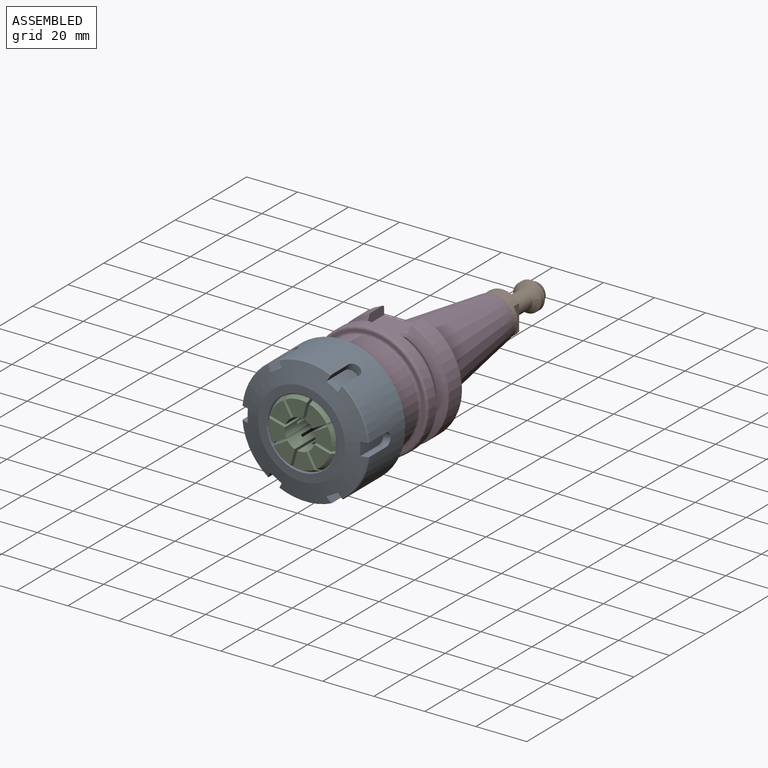
[diagram: assembled view]
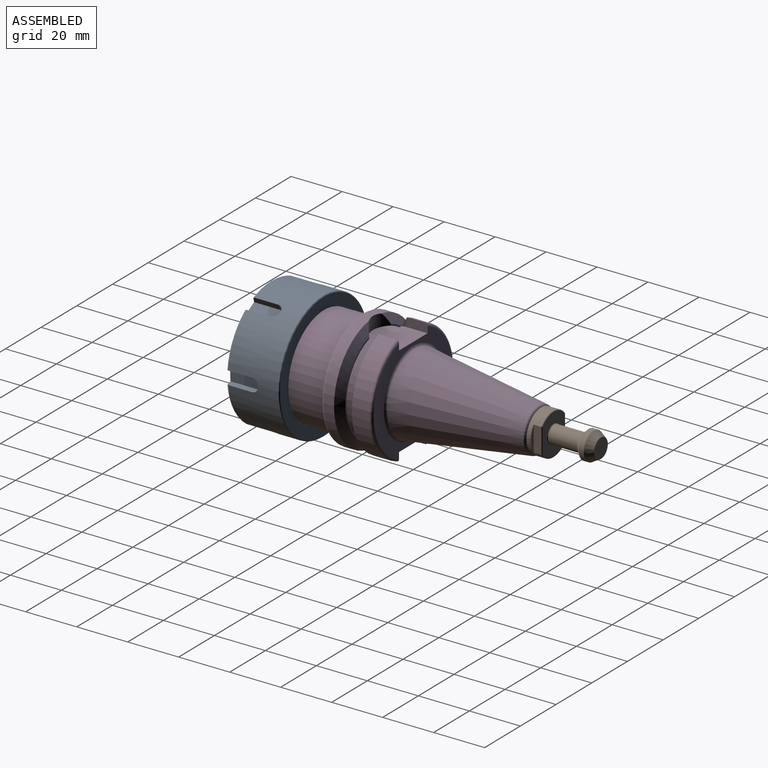
[diagram: assembled view, second angle]
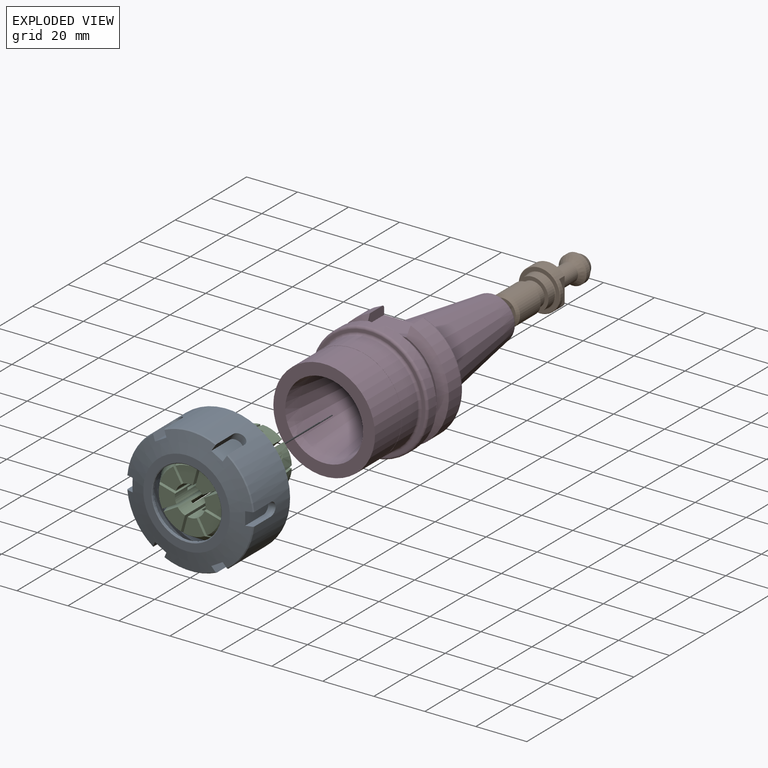
[diagram: exploded view]
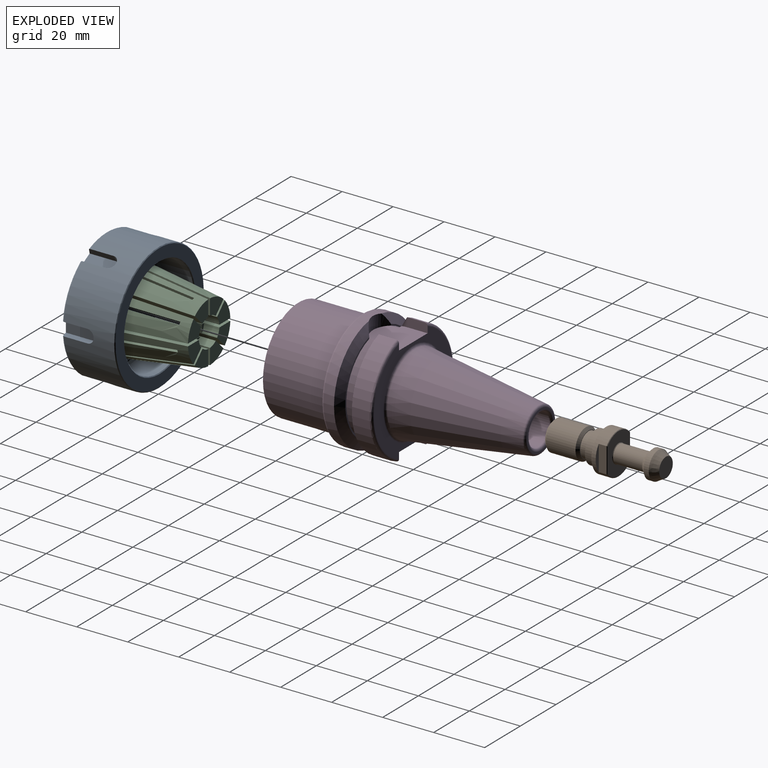
[diagram: exploded view, second angle]
ASSEMBLY  parts=4 mates=3
PART A: 43 faces, bbox 50x22.6x50 mm
  f0: cone r=25mm half-angle=31deg, axis (0,1,0), area 11.8mm2, adj f11,f14,f37,f40
  f1: cone r=25mm half-angle=31deg, axis (0,1,0), area 11.8mm2, adj f11,f14,f33,f36
  f2: cone r=25mm half-angle=31deg, axis (0,1,0), area 11.8mm2, adj f11,f14,f29,f32
  f3: cone r=25mm half-angle=31deg, axis (0,1,0), area 11.8mm2, adj f11,f14,f25,f28
  f4: cone r=25mm half-angle=31deg, axis (0,1,0), area 11.8mm2, adj f11,f14,f21,f24
  f5: cone r=20.5mm half-angle=45deg, axis (0,1,0), area 1057.4mm2, adj f6,f13
  f6: plane 42x42mm, normal (0,1,0), area 65.2mm2, adj f5,f7
  f7: cylinder r=21mm len=42mm, axis (0,1,0), area 395.8mm2, adj f6,f8
  f8: plane 42x42mm, normal (0,-1,0), area 166.2mm2, adj f7,f9
  f9: cylinder r=19.7mm len=39.4mm, axis (0,1,0), area 1398.7mm2, adj f8,f15
  f10: plane 49.4x49.4mm, normal (0,1,0), area 660mm2, adj f15,f18
  f11: cylinder r=25mm len=50mm, axis (0,1,0), area 2775.6mm2, adj f0,f1,f2,f3,f4,f16,f18,f19
  f12: plane 34x34mm, normal (0,-1,0), area 309.6mm2, adj f14,f17
  f13: cylinder r=13.5mm len=27mm, axis (0,1,0), area 59.4mm2, adj f5,f17
  f14: cone r=25mm half-angle=76deg, axis (0,1,0), area 958.6mm2, adj f0,f1,f2,f3,f4,f12,f16,f20
  f15: cone r=19.7mm half-angle=45deg, axis (0,1,0), area 52.9mm2, adj f9,f10
  f16: cone r=25mm half-angle=31deg, axis (0,1,0), area 11.8mm2, adj f11,f14,f20,f41
  f17: cone r=13.8mm half-angle=45deg, axis (0,-1,0), area 36.4mm2, adj f12,f13
  f18: cone r=24.7mm half-angle=45deg, axis (0,-1,0), area 66.2mm2, adj f10,f11
  f19: cylinder r=2.58mm len=5.16mm, axis (-1,0,0), area 23.1mm2, adj f11,f20,f21,f22
  f20: plane 10.33x2.8mm, normal (0,0,1), area 27.7mm2, adj f11,f14,f16,f19,f22
  f21: plane 10.33x2.8mm, normal (0,0,-1), area 27.7mm2, adj f4,f11,f14,f19,f22
  f22: plane 12.93x5.16mm, normal (-1,0,0), area 63.8mm2, adj f14,f19,f20,f21
  f23: cylinder r=2.58mm len=5.93mm, axis (-0.5,0,0.87), area 23.1mm2, adj f11,f24,f25,f26
  f24: plane 10.33x2.43mm, normal (0.87,0,0.5), area 27.7mm2, adj f4,f11,f14,f23,f26
  f25: plane 10.33x2.43mm, normal (-0.87,0,-0.5), area 27.7mm2, adj f3,f11,f14,f23,f26
  f26: plane 12.93x4.47mm, normal (-0.5,0,0.87), area 63.8mm2, adj f14,f23,f24,f25
  f27: cylinder r=2.58mm len=5.93mm, axis (0.5,0,0.87), area 23.1mm2, adj f11,f28,f29,f30
  f28: plane 10.33x2.43mm, normal (0.87,0,-0.5), area 27.7mm2, adj f3,f11,f14,f27,f30
  f29: plane 10.33x2.43mm, normal (-0.87,0,0.5), area 27.7mm2, adj f2,f11,f14,f27,f30
  f30: plane 12.93x4.47mm, normal (0.5,0,0.87), area 63.8mm2, adj f14,f27,f28,f29
  f31: cylinder r=2.58mm len=5.16mm, axis (1,0,0), area 23.1mm2, adj f11,f32,f33,f34
  f32: plane 10.33x2.8mm, normal (0,0,-1), area 27.7mm2, adj f2,f11,f14,f31,f34
  f33: plane 10.33x2.8mm, normal (0,0,1), area 27.7mm2, adj f1,f11,f14,f31,f34
  f34: plane 12.93x5.16mm, normal (1,0,0), area 63.8mm2, adj f14,f31,f32,f33
  f35: cylinder r=2.58mm len=5.93mm, axis (0.5,0,-0.87), area 23.1mm2, adj f11,f36,f37,f38
  f36: plane 10.33x2.43mm, normal (-0.87,0,-0.5), area 27.7mm2, adj f1,f11,f14,f35,f38
  f37: plane 10.33x2.43mm, normal (0.87,0,0.5), area 27.7mm2, adj f0,f11,f14,f35,f38
  f38: plane 12.93x4.47mm, normal (0.5,0,-0.87), area 63.8mm2, adj f14,f35,f36,f37
  f39: cylinder r=2.58mm len=5.93mm, axis (-0.5,0,-0.87), area 23.1mm2, adj f11,f40,f41,f42
  f40: plane 10.33x2.43mm, normal (-0.87,0,0.5), area 27.7mm2, adj f0,f11,f14,f39,f42
  f41: plane 10.33x2.43mm, normal (0.87,0,-0.5), area 27.7mm2, adj f11,f14,f16,f39,f42
  f42: plane 12.93x4.47mm, normal (-0.5,0,-0.87), area 63.8mm2, adj f14,f39,f40,f41
PART B: 27 faces, bbox 16.4x43.9x16.4 mm
  f0: cylinder r=8.22mm len=16.44mm, axis (0,-1,0), area 175.9mm2, adj f16,f17,f18,f19,f21,f23,f24
  f1: plane 16.04x12.63mm, normal (0,1,0), area 136.1mm2, adj f22,f23,f24,f25,f26
  f2: plane 9.95x9.95mm, normal (0,-1,0), area 77.8mm2, adj f15
  f3: cylinder r=5.98mm len=11.95mm, axis (0,-1,0), area 435.5mm2, adj f14,f15
  f4: plane 9.95x9.95mm, normal (0,1,0), area 5.8mm2, adj f5,f14
  f5: cylinder r=4.79mm len=9.57mm, axis (0,-1,0), area 87.2mm2, adj f4,f6
  f6: plane 12.53x12.53mm, normal (0,-1,0), area 51.4mm2, adj f5,f7
  f7: cylinder r=6.26mm len=12.53mm, axis (0,-1,0), area 141.7mm2, adj f6,f20
  f8: plane 16.04x16.04mm, normal (0,-1,0), area 70.8mm2, adj f20,f21
  f9: cylinder r=3.5mm len=11.4mm, axis (0,-1,0), area 250.7mm2, adj f10,f26
  f10: cone r=3.5mm half-angle=45deg, axis (0,1,0), area 80mm2, adj f9,f11
  f11: cylinder r=5.5mm len=11mm, axis (0,-1,0), area 69.1mm2, adj f10,f12
  f12: cone r=5.5mm half-angle=30deg, axis (0,-1,0), area 98.7mm2, adj f11,f13
  f13: plane 7.63x7.63mm, normal (0,1,0), area 45.7mm2, adj f12
  f14: cone r=5.98mm half-angle=45deg, axis (0,-1,0), area 48.6mm2, adj f3,f4
  f15: cone r=4.98mm half-angle=45deg, axis (0,1,0), area 48.6mm2, adj f2,f3
  f16: plane 10.02x3.1mm, normal (-1,0,0), area 31.1mm2, adj f0,f17,f25
  f17: plane 10.02x1.71mm, normal (0,1,0), area 11.7mm2, adj f0,f16
  f18: plane 10.02x1.71mm, normal (0,1,0), area 11.7mm2, adj f0,f19
  f19: plane 10.02x3.1mm, normal (1,0,0), area 31.1mm2, adj f0,f18,f22
  f20: cone r=6.26mm half-angle=45deg, axis (0,1,0), area 11.3mm2, adj f7,f8
  f21: cone r=8.02mm half-angle=45deg, axis (0,1,0), area 14.4mm2, adj f0,f8
  f22: plane 10.03x0.2mm, normal (0.71,0.71,0), area 2.8mm2, adj f1,f19,f23,f24
  f23: cone r=8.22mm half-angle=45deg, axis (0,-1,0), area 4.2mm2, adj f0,f1,f22,f25
  f24: cone r=8.22mm half-angle=45deg, axis (0,-1,0), area 4.2mm2, adj f0,f1,f22,f25
  f25: plane 10.03x0.2mm, normal (-0.71,0.71,0), area 2.8mm2, adj f1,f16,f23,f24
  f26: cone r=3.7mm half-angle=45deg, axis (0,-1,0), area 6.4mm2, adj f1,f9
PART C: 184 faces, bbox 32.8x40x32.8 mm
  f0: cone r=12.36mm half-angle=30deg, axis (0,1,0), area 78.2mm2, adj f14,f38,f97,f136,f137,f138,f163,f173
  f1: cone r=12.36mm half-angle=30deg, axis (0,1,0), area 78.2mm2, adj f15,f37,f39,f157,f158,f159,f164,f182
  f2: cone r=12.36mm half-angle=30deg, axis (0,1,0), area 78.2mm2, adj f16,f56,f98,f139,f140,f141,f161,f172
  f3: cone r=12.36mm half-angle=30deg, axis (0,1,0), area 78.2mm2, adj f17,f43,f104,f142,f143,f144,f162,f176
  f4: cone r=12.36mm half-angle=30deg, axis (0,1,0), area 78.2mm2, adj f18,f40,f99,f154,f155,f156,f169,f183
  f5: cone r=12.36mm half-angle=30deg, axis (0,1,0), area 78.2mm2, adj f19,f41,f100,f151,f152,f153,f170,f178
  f6: cone r=12.36mm half-angle=30deg, axis (0,1,0), area 78.2mm2, adj f20,f42,f101,f148,f149,f150,f166,f179
  f7: cylinder r=6mm len=22mm, axis (0,-1,0), area 66.7mm2, adj f14,f45,f105,f136,f137,f138,f163,f173
  f8: cylinder r=6mm len=22mm, axis (0,-1,0), area 66.7mm2, adj f15,f44,f46,f157,f158,f159,f164,f182
  f9: cylinder r=6mm len=22mm, axis (0,-1,0), area 66.7mm2, adj f16,f59,f106,f139,f140,f141,f161,f172
  f10: cylinder r=6mm len=22mm, axis (0,-1,0), area 66.7mm2, adj f17,f50,f112,f142,f143,f144,f162,f176
  f11: cylinder r=6mm len=22mm, axis (0,-1,0), area 66.7mm2, adj f18,f47,f107,f154,f155,f156,f169,f183
  f12: cylinder r=6mm len=22mm, axis (0,-1,0), area 66.7mm2, adj f19,f48,f108,f151,f152,f153,f170,f178
  f13: cylinder r=6mm len=22mm, axis (0,-1,0), area 66.7mm2, adj f20,f49,f109,f148,f149,f150,f166,f179
  f14: plane 8.45x6.93mm, normal (0,-1,0), area 39.5mm2, adj f0,f7,f163,f173
  f15: plane 8.41x8.38mm, normal (0,-1,0), area 39.5mm2, adj f1,f8,f164,f182
  f16: plane 8.41x8.38mm, normal (0,-1,0), area 39.5mm2, adj f2,f9,f161,f172
  f17: plane 8.45x6.93mm, normal (0,-1,0), area 39.5mm2, adj f3,f10,f162,f176
  f18: plane 8.45x6.93mm, normal (0,-1,0), area 39.5mm2, adj f4,f11,f169,f183
  f19: plane 8.41x8.38mm, normal (0,-1,0), area 39.5mm2, adj f5,f12,f170,f178
  f20: plane 8.45x6.93mm, normal (0,-1,0), area 39.5mm2, adj f6,f13,f166,f179
  f21: cone r=16mm half-angle=8deg, axis (0,-1,0), area 268.8mm2, adj f25,f70,f83,f155,f158,f181,f182,f183
  f22: cone r=16mm half-angle=8deg, axis (0,-1,0), area 268.8mm2, adj f29,f74,f87,f143,f145,f175,f176,f177
  f23: plane 3.33x3.07mm, normal (0,-1,0), area 4.8mm2, adj f30,f76,f159,f164
  f24: plane 3.16x1.97mm, normal (0,-1,0), area 4.8mm2, adj f31,f77,f138,f173
  f25: plane 6.75x4.79mm, normal (0,-1,0), area 11.2mm2, adj f21,f32,f158,f182
  f26: plane 7.06x3.28mm, normal (0,-1,0), area 11.2mm2, adj f33,f78,f154,f169
  f27: plane 6.75x4.79mm, normal (0,-1,0), area 11.2mm2, adj f34,f79,f151,f178
  f28: plane 7.06x3.28mm, normal (0,-1,0), area 11.2mm2, adj f35,f80,f148,f166
  f29: plane 3.16x1.97mm, normal (0,-1,0), area 4.8mm2, adj f22,f36,f143,f176
  f30: cylinder r=14.39mm len=3.6mm, axis (0,-1,0), area 10mm2, adj f23,f37,f159,f164
  f31: cylinder r=14.39mm len=3.6mm, axis (0,-1,0), area 10mm2, adj f24,f38,f138,f173
  f32: cylinder r=14.39mm len=5.61mm, axis (0,-1,0), area 23.5mm2, adj f25,f39,f158,f182
  f33: cylinder r=14.39mm len=6.26mm, axis (0,-1,0), area 23.5mm2, adj f26,f40,f154,f169
  f34: cylinder r=14.39mm len=5.61mm, axis (0,-1,0), area 23.5mm2, adj f27,f41,f151,f178
  f35: cylinder r=14.39mm len=6.26mm, axis (0,-1,0), area 23.5mm2, adj f28,f42,f148,f166
  f36: cylinder r=14.39mm len=3.6mm, axis (0,-1,0), area 10mm2, adj f29,f43,f143,f176
  f37: plane 3.61x3.42mm, normal (0,1,0), area 6.1mm2, adj f1,f30,f159,f164
  f38: plane 3.26x2.37mm, normal (0,1,0), area 6.1mm2, adj f0,f31,f138,f173
  f39: plane 7.03x5.18mm, normal (0,1,0), area 14.2mm2, adj f1,f32,f158,f182
  f40: plane 7.26x3.68mm, normal (0,1,0), area 14.2mm2, adj f4,f33,f154,f169
  f41: plane 7.03x5.18mm, normal (0,1,0), area 14.2mm2, adj f5,f34,f151,f178
  f42: plane 7.26x3.68mm, normal (0,1,0), area 14.2mm2, adj f6,f35,f148,f166
  f43: plane 3.26x2.37mm, normal (0,1,0), area 6.1mm2, adj f3,f36,f143,f176
  f44: plane 0.7x0.46mm, normal (0,-1,0), area 0.2mm2, adj f8,f113,f135,f159,f164
  f45: plane 1.48x0.56mm, normal (0,-1,0), area 0.6mm2, adj f7,f121,f138,f173
  f46: plane 2.15x1.18mm, normal (0,-1,0), area 1.4mm2, adj f8,f51,f130,f158,f182
  f47: plane 2.06x1.48mm, normal (0,-1,0), area 2.4mm2, adj f11,f131,f154,f169
  f48: plane 2.15x1.18mm, normal (0,-1,0), area 1.4mm2, adj f12,f115,f132,f151,f178
  f49: plane 2.06x1.48mm, normal (0,-1,0), area 2.4mm2, adj f13,f133,f148,f166
  f50: plane 1.48x0.56mm, normal (0,-1,0), area 0.6mm2, adj f10,f52,f143,f176
  f51: plane 12.01x3.01mm, normal (-1,0,0), area 26.1mm2, adj f46,f65,f107,f130,f155,f181,f182,f183
  f52: plane 12.01x3.01mm, normal (1,0,0), area 26.1mm2, adj f50,f67,f111,f134,f143,f175,f176,f177
  f53: cone r=16mm half-angle=8deg, axis (0,-1,0), area 268.8mm2, adj f54,f75,f88,f140,f142,f160,f161,f162
  f54: plane 3.33x3.07mm, normal (0,-1,0), area 4.8mm2, adj f53,f55,f140,f161
  f55: cylinder r=14.39mm len=3.6mm, axis (0,-1,0), area 10mm2, adj f54,f56,f140,f161
  f56: plane 3.61x3.42mm, normal (0,1,0), area 6.1mm2, adj f2,f55,f140,f161
  f57: cone r=12.36mm half-angle=30deg, axis (0,1,0), area 78.2mm2, adj f60,f102,f103,f145,f146,f147,f167,f175
  f58: cylinder r=6mm len=22mm, axis (0,-1,0), area 66.7mm2, adj f60,f110,f111,f145,f146,f147,f167,f175
  f59: plane 0.7x0.46mm, normal (0,-1,0), area 0.2mm2, adj f9,f61,f118,f140,f161
  f60: plane 8.41x8.38mm, normal (0,-1,0), area 39.5mm2, adj f57,f58,f167,f175
  f61: plane 12.01x3.01mm, normal (1,0,0), area 24.4mm2, adj f59,f112,f118,f127,f142,f160,f161,f162
  f62: cylinder r=5.75mm len=6mm, axis (0,-1,0), area 20.2mm2, adj f65,f70,f130,f155
  f63: cylinder r=5.75mm len=6mm, axis (0,-1,0), area 20.2mm2, adj f66,f72,f132,f149
  f64: cylinder r=5.75mm len=6mm, axis (0,-1,0), area 20.2mm2, adj f67,f74,f134,f143
  f65: plane 3.08x1.23mm, normal (0,1,0), area 2.4mm2, adj f51,f62,f130,f155
  f66: plane 3.08x1.23mm, normal (0,1,0), area 2.4mm2, adj f63,f115,f132,f149
  f67: plane 3.08x1.23mm, normal (0,1,0), area 2.4mm2, adj f52,f64,f134,f143
  f68: plane 7.53x7.39mm, normal (0,1,0), area 36.2mm2, adj f76,f113,f128,f137,f159
  f69: plane 7.53x7.39mm, normal (0,1,0), area 36.2mm2, adj f77,f117,f119,f138,f139
  f70: plane 7.53x7.39mm, normal (0,1,0), area 36.2mm2, adj f21,f62,f130,f155,f158
  f71: plane 7.53x7.39mm, normal (0,1,0), area 36.2mm2, adj f78,f114,f122,f152,f154
  f72: plane 7.53x7.39mm, normal (0,1,0), area 36.2mm2, adj f63,f79,f132,f149,f151
  f73: plane 7.53x7.39mm, normal (0,1,0), area 36.2mm2, adj f80,f116,f123,f146,f148
  f74: plane 7.53x7.39mm, normal (0,1,0), area 36.2mm2, adj f22,f64,f134,f143,f145
  f75: plane 7.53x7.39mm, normal (0,1,0), area 36.2mm2, adj f53,f118,f124,f140,f142
  f76: cone r=16mm half-angle=8deg, axis (0,-1,0), area 268.8mm2, adj f23,f68,f81,f137,f159,f163,f164,f165
  f77: cone r=16mm half-angle=8deg, axis (0,-1,0), area 268.8mm2, adj f24,f69,f82,f138,f139,f172,f173,f174
  f78: cone r=16mm half-angle=8deg, axis (0,-1,0), area 268.8mm2, adj f26,f71,f84,f152,f154,f169,f170,f171
  f79: cone r=16mm half-angle=8deg, axis (0,-1,0), area 268.8mm2, adj f27,f72,f85,f149,f151,f178,f179,f180
  f80: cone r=16mm half-angle=8deg, axis (0,-1,0), area 268.8mm2, adj f28,f73,f86,f146,f148,f166,f167,f168
  f81: plane 7.06x3.28mm, normal (0,-1,0), area 11.2mm2, adj f76,f89,f137,f163
  f82: plane 6.75x4.79mm, normal (0,-1,0), area 11.2mm2, adj f77,f90,f139,f172
  f83: plane 3.16x1.97mm, normal (0,-1,0), area 4.8mm2, adj f21,f91,f155,f183
  f84: plane 3.33x3.07mm, normal (0,-1,0), area 4.8mm2, adj f78,f92,f152,f170
  f85: plane 3.16x1.97mm, normal (0,-1,0), area 4.8mm2, adj f79,f93,f149,f179
  f86: plane 3.33x3.07mm, normal (0,-1,0), area 4.8mm2, adj f80,f94,f146,f167
  f87: plane 6.75x4.79mm, normal (0,-1,0), area 11.2mm2, adj f22,f95,f145,f175
  f88: plane 7.06x3.28mm, normal (0,-1,0), area 11.2mm2, adj f53,f96,f142,f162
  f89: cylinder r=14.39mm len=6.26mm, axis (0,-1,0), area 23.5mm2, adj f81,f97,f137,f163
  f90: cylinder r=14.39mm len=5.61mm, axis (0,-1,0), area 23.5mm2, adj f82,f98,f139,f172
  f91: cylinder r=14.39mm len=3.6mm, axis (0,-1,0), area 10mm2, adj f83,f99,f155,f183
  f92: cylinder r=14.39mm len=3.6mm, axis (0,-1,0), area 10mm2, adj f84,f100,f152,f170
  f93: cylinder r=14.39mm len=3.6mm, axis (0,-1,0), area 10mm2, adj f85,f101,f149,f179
  f94: cylinder r=14.39mm len=3.6mm, axis (0,-1,0), area 10mm2, adj f86,f102,f146,f167
  f95: cylinder r=14.39mm len=5.61mm, axis (0,-1,0), area 23.5mm2, adj f87,f103,f145,f175
  f96: cylinder r=14.39mm len=6.26mm, axis (0,-1,0), area 23.5mm2, adj f88,f104,f142,f162
  f97: plane 7.26x3.68mm, normal (0,1,0), area 14.2mm2, adj f0,f89,f137,f163
  f98: plane 7.03x5.18mm, normal (0,1,0), area 14.2mm2, adj f2,f90,f139,f172
  f99: plane 3.26x2.37mm, normal (0,1,0), area 6.1mm2, adj f4,f91,f155,f183
  f100: plane 3.61x3.42mm, normal (0,1,0), area 6.1mm2, adj f5,f92,f152,f170
  f101: plane 3.26x2.37mm, normal (0,1,0), area 6.1mm2, adj f6,f93,f149,f179
  f102: plane 3.61x3.42mm, normal (0,1,0), area 6.1mm2, adj f57,f94,f146,f167
  f103: plane 7.03x5.18mm, normal (0,1,0), area 14.2mm2, adj f57,f95,f145,f175
  f104: plane 7.26x3.68mm, normal (0,1,0), area 14.2mm2, adj f3,f96,f142,f162
  f105: plane 2.06x1.48mm, normal (0,-1,0), area 2.4mm2, adj f7,f135,f137,f163
  f106: plane 2.15x1.18mm, normal (0,-1,0), area 1.4mm2, adj f9,f117,f121,f139,f172
  f107: plane 1.48x0.56mm, normal (0,-1,0), area 0.6mm2, adj f11,f51,f155,f183
  f108: plane 0.7x0.46mm, normal (0,-1,0), area 0.2mm2, adj f12,f114,f131,f152,f170
  f109: plane 1.48x0.56mm, normal (0,-1,0), area 0.6mm2, adj f13,f115,f149,f179
  f110: plane 0.7x0.46mm, normal (0,-1,0), area 0.2mm2, adj f58,f116,f133,f146,f167
  f111: plane 2.15x1.18mm, normal (0,-1,0), area 1.4mm2, adj f52,f58,f134,f145,f175
  f112: plane 2.06x1.48mm, normal (0,-1,0), area 2.4mm2, adj f10,f61,f142,f162
  f113: cylinder r=1mm len=18mm, axis (0,1,0), area 4.2mm2, adj f44,f68,f128,f129,f135,f159
  f114: cylinder r=1mm len=18mm, axis (0,1,0), area 4.2mm2, adj f71,f108,f122,f125,f131,f152
  f115: plane 12.01x3.01mm, normal (0,0,-1), area 26.1mm2, adj f48,f66,f109,f132,f149,f178,f179,f180
  f116: cylinder r=1mm len=18mm, axis (0,1,0), area 4.2mm2, adj f73,f110,f123,f126,f133,f146
  f117: cylinder r=1mm len=18mm, axis (0,1,0), area 4.2mm2, adj f69,f106,f119,f120,f121,f139
  f118: cylinder r=1mm len=18mm, axis (0,1,0), area 4.2mm2, adj f59,f61,f75,f124,f127,f140
  f119: cylinder r=5.75mm len=6mm, axis (0,-1,0), area 20.2mm2, adj f69,f117,f120,f138
  f120: plane 3.08x1.23mm, normal (0,1,0), area 2.4mm2, adj f117,f119,f121,f138
  f121: plane 12.01x3.01mm, normal (0,0,1), area 26.1mm2, adj f45,f106,f117,f120,f138,f172,f173,f174
  f122: cylinder r=5.75mm len=6mm, axis (0,-1,0), area 20.2mm2, adj f71,f114,f125,f154
  f123: cylinder r=5.75mm len=6mm, axis (0,-1,0), area 20.2mm2, adj f73,f116,f126,f148
  f124: cylinder r=5.75mm len=6mm, axis (0,-1,0), area 20.2mm2, adj f75,f118,f127,f142
  f125: plane 3.08x1.23mm, normal (0,1,0), area 2.4mm2, adj f114,f122,f131,f154
  f126: plane 3.08x1.23mm, normal (0,1,0), area 2.4mm2, adj f116,f123,f133,f148
  f127: plane 3.08x1.23mm, normal (0,1,0), area 2.4mm2, adj f61,f118,f124,f142
  f128: cylinder r=5.75mm len=6mm, axis (0,-1,0), area 20.2mm2, adj f68,f113,f129,f137
  f129: plane 3.08x1.23mm, normal (0,1,0), area 2.4mm2, adj f113,f128,f135,f137
  f130: cylinder r=1mm len=18mm, axis (0,1,0), area 4.2mm2, adj f46,f51,f62,f65,f70,f158
  f131: plane 12.01x3.01mm, normal (-1,0,0), area 24.4mm2, adj f47,f108,f114,f125,f154,f169,f170,f171
  f132: cylinder r=1mm len=18mm, axis (0,1,0), area 4.2mm2, adj f48,f63,f66,f72,f115,f151
  f133: plane 12.01x3.01mm, normal (0,0,-1), area 24.4mm2, adj f49,f110,f116,f126,f148,f166,f167,f168
  f134: cylinder r=1mm len=18mm, axis (0,1,0), area 4.2mm2, adj f52,f64,f67,f74,f111,f145
  f135: plane 12.01x3.01mm, normal (0,0,1), area 24.4mm2, adj f44,f105,f113,f129,f137,f163,f164,f165
  f136: cylinder r=18.36mm len=7.99mm, axis (-1,0,0), area 9.2mm2, adj f0,f7,f137,f138
  f137: plane 37.22x11.91mm, normal (-1,0,0), area 308.1mm2, adj f0,f7,f68,f76,f81,f89,f97,f105
  f138: plane 37.22x11.91mm, normal (1,0,0), area 308.1mm2, adj f0,f7,f24,f31,f38,f45,f69,f77
  f139: plane 37.22x7.5mm, normal (-0.71,0,0.71), area 291.8mm2, adj f2,f9,f69,f77,f82,f90,f98,f106
  f140: plane 37.22x7.5mm, normal (0.71,0,-0.71), area 291.8mm2, adj f2,f9,f53,f54,f55,f56,f59,f75
  f141: cylinder r=18.36mm len=6.36mm, axis (-0.71,0,0.71), area 9.2mm2, adj f2,f9,f139,f140
  f142: plane 37.22x11.91mm, normal (0,0,1), area 308.1mm2, adj f3,f10,f53,f61,f75,f88,f96,f104
  f143: plane 37.22x11.91mm, normal (0,0,-1), area 308.1mm2, adj f3,f10,f22,f29,f36,f43,f50,f52
  f144: cylinder r=18.36mm len=7.99mm, axis (0,0,1), area 9.2mm2, adj f3,f10,f142,f143
  f145: plane 37.22x7.5mm, normal (0.71,0,0.71), area 291.8mm2, adj f22,f57,f58,f74,f87,f95,f103,f111
  f146: plane 37.22x7.5mm, normal (-0.71,0,-0.71), area 291.8mm2, adj f57,f58,f73,f80,f86,f94,f102,f110
  f147: cylinder r=18.36mm len=6.36mm, axis (0.71,0,0.71), area 9.2mm2, adj f57,f58,f145,f146
  f148: plane 37.22x11.91mm, normal (1,0,0), area 308.1mm2, adj f6,f13,f28,f35,f42,f49,f73,f80
  f149: plane 37.22x11.91mm, normal (-1,0,0), area 308.1mm2, adj f6,f13,f63,f66,f72,f79,f85,f93
  f150: cylinder r=18.36mm len=7.99mm, axis (1,0,0), area 9.2mm2, adj f6,f13,f148,f149
  f151: plane 37.22x7.5mm, normal (0.71,0,-0.71), area 291.8mm2, adj f5,f12,f27,f34,f41,f48,f72,f79
  f152: plane 37.22x7.5mm, normal (-0.71,0,0.71), area 291.8mm2, adj f5,f12,f71,f78,f84,f92,f100,f108
  f153: cylinder r=18.36mm len=6.36mm, axis (0.71,0,-0.71), area 9.2mm2, adj f5,f12,f151,f152
  f154: plane 37.22x11.91mm, normal (0,0,-1), area 308.1mm2, adj f4,f11,f26,f33,f40,f47,f71,f78
  f155: plane 37.22x11.91mm, normal (0,0,1), area 308.1mm2, adj f4,f11,f21,f51,f62,f65,f70,f83
  f156: cylinder r=18.36mm len=7.99mm, axis (0,0,-1), area 9.2mm2, adj f4,f11,f154,f155
  f157: cylinder r=18.36mm len=6.36mm, axis (-0.71,0,-0.71), area 9.2mm2, adj f1,f8,f158,f159
  f158: plane 37.22x7.5mm, normal (-0.71,0,-0.71), area 291.8mm2, adj f1,f8,f21,f25,f32,f39,f46,f70
  f159: plane 37.22x7.5mm, normal (0.71,0,0.71), area 291.8mm2, adj f1,f8,f23,f30,f37,f44,f68,f76
  f160: cylinder r=16.42mm len=7mm, axis (0.5,0,-0.87), area 8.3mm2, adj f53,f61,f161,f162
  f161: plane 36.04x9.47mm, normal (-0.5,0,0.87), area 294.8mm2, adj f2,f9,f16,f53,f54,f55,f56,f59
  f162: plane 36.04x9.97mm, normal (0.5,0,-0.87), area 300.6mm2, adj f3,f10,f17,f53,f61,f88,f96,f104
  f163: plane 36.04x9.97mm, normal (0.87,0,0.5), area 300.6mm2, adj f0,f7,f14,f76,f81,f89,f97,f105
  f164: plane 36.04x9.47mm, normal (-0.87,0,-0.5), area 294.8mm2, adj f1,f8,f15,f23,f30,f37,f44,f76
  f165: cylinder r=16.42mm len=7mm, axis (0.87,0,0.5), area 8.3mm2, adj f76,f135,f163,f164
  f166: plane 36.04x9.97mm, normal (-0.87,0,-0.5), area 300.6mm2, adj f6,f13,f20,f28,f35,f42,f49,f80
  f167: plane 36.04x9.47mm, normal (0.87,0,0.5), area 294.8mm2, adj f57,f58,f60,f80,f86,f94,f102,f110
  f168: cylinder r=16.42mm len=7mm, axis (-0.87,0,-0.5), area 8.3mm2, adj f80,f133,f166,f167
  f169: plane 36.04x9.97mm, normal (-0.5,0,0.87), area 300.6mm2, adj f4,f11,f18,f26,f33,f40,f47,f78
  f170: plane 36.04x9.47mm, normal (0.5,0,-0.87), area 294.8mm2, adj f5,f12,f19,f78,f84,f92,f100,f108
  f171: cylinder r=16.42mm len=7mm, axis (-0.5,0,0.87), area 8.3mm2, adj f78,f131,f169,f170
  f172: plane 36.04x11.22mm, normal (0.97,0,-0.26), area 301.7mm2, adj f2,f9,f16,f77,f82,f90,f98,f106
  f173: plane 36.04x11.48mm, normal (-0.97,0,0.26), area 304.3mm2, adj f0,f7,f14,f24,f31,f38,f45,f77
  f174: cylinder r=16.42mm len=7.88mm, axis (0.97,0,-0.26), area 9.1mm2, adj f77,f121,f172,f173
  f175: plane 36.04x11.22mm, normal (-0.26,0,-0.97), area 301.7mm2, adj f22,f52,f57,f58,f60,f87,f95,f103
  f176: plane 36.04x11.48mm, normal (0.26,0,0.97), area 304.3mm2, adj f3,f10,f17,f22,f29,f36,f43,f50
  f177: cylinder r=16.42mm len=7.88mm, axis (-0.26,0,-0.97), area 9.1mm2, adj f22,f52,f175,f176
  f178: plane 36.04x11.22mm, normal (-0.97,0,0.26), area 301.7mm2, adj f5,f12,f19,f27,f34,f41,f48,f79
  f179: plane 36.04x11.48mm, normal (0.97,0,-0.26), area 304.3mm2, adj f6,f13,f20,f79,f85,f93,f101,f109
  f180: cylinder r=16.42mm len=7.88mm, axis (-0.97,0,0.26), area 9.1mm2, adj f79,f115,f178,f179
  f181: cylinder r=16.42mm len=7.88mm, axis (0.26,0,0.97), area 9.1mm2, adj f21,f51,f182,f183
  f182: plane 36.04x11.22mm, normal (0.26,0,0.97), area 301.7mm2, adj f1,f8,f15,f21,f25,f32,f39,f46
  f183: plane 36.04x11.48mm, normal (-0.26,0,-0.97), area 304.3mm2, adj f4,f11,f18,f21,f51,f83,f91,f99
PART D: 45 faces, bbox 50x95.2x50 mm
  f0: cylinder r=18.96mm len=36mm, axis (0,-1,0), area 142.3mm2, adj f3,f7,f38,f44
  f1: cylinder r=18.96mm len=36mm, axis (0,-1,0), area 142.3mm2, adj f2,f8,f38,f44
  f2: plane 36x13.6mm, normal (0,-1,0), area 27.9mm2, adj f1,f9,f38,f44
  f3: plane 36x13.6mm, normal (0,-1,0), area 27.9mm2, adj f0,f10,f38,f44
  f4: cylinder r=23mm len=46mm, axis (0,-1,0), area 570.5mm2, adj f5,f6,f29,f33,f39
  f5: cone r=23mm half-angle=59.8deg, axis (0,-1,0), area 226.7mm2, adj f4,f8,f33,f39
  f6: cone r=23mm half-angle=59.8deg, axis (0,-1,0), area 226.7mm2, adj f4,f7,f33,f39
  f7: plane 37.18x13.6mm, normal (0,1,0), area 28.9mm2, adj f0,f6,f33,f38,f39,f44
  f8: plane 37.18x13.6mm, normal (0,1,0), area 28.9mm2, adj f1,f5,f33,f38,f39,f44
  f9: cone r=19.56mm half-angle=59.8deg, axis (0,1,0), area 201.7mm2, adj f2,f11,f36,f38,f42,f44
  f10: cone r=19.56mm half-angle=59.8deg, axis (0,1,0), area 201.7mm2, adj f3,f12,f34,f38,f40,f44
  f11: cylinder r=23mm len=43.13mm, axis (0,-1,0), area 391.4mm2, adj f9,f14,f36,f37,f41,f42
  f12: cylinder r=23mm len=43.13mm, axis (0,-1,0), area 391.4mm2, adj f10,f15,f34,f35,f40,f43
  f13: plane 44x40.99mm, normal (0,1,0), area 525.4mm2, adj f14,f15,f30,f35,f37,f38,f41,f43
  f14: torus R=22mm, axis (0,1,0), area 85.8mm2, adj f11,f13,f37,f41
  f15: torus R=22mm, axis (0,1,0), area 85.8mm2, adj f12,f13,f35,f43
  f16: cylinder r=6.2mm len=12.4mm, axis (0,-1,0), area 305.8mm2, adj f17,f32
  f17: plane 12.4x12.4mm, normal (0,1,0), area 70.5mm2, adj f16,f18
  f18: cylinder r=4mm len=51.92mm, axis (0,-1,0), area 1304.8mm2, adj f17,f19
  f19: plane 20.93x20.93mm, normal (0,-1,0), area 293.7mm2, adj f18,f20
  f20: cone r=10.46mm half-angle=8deg, axis (0,-1,0), area 2795.4mm2, adj f19,f21
  f21: plane 39.89x39.89mm, normal (0,-1,0), area 516.7mm2, adj f20,f22
  f22: cylinder r=19.95mm len=39.89mm, axis (0,-1,0), area 1879.8mm2, adj f21,f23
  f23: plane 40x40mm, normal (0,-1,0), area 6.9mm2, adj f22,f24
  f24: cylinder r=20mm len=40mm, axis (0,-1,0), area 1131mm2, adj f23,f28
  f25: plane 44x44mm, normal (0,-1,0), area 135.1mm2, adj f28,f29
  f26: cone r=15.9mm half-angle=8.3deg, axis (0,-1,0), area 3757.3mm2, adj f30,f31
  f27: plane 15.49x15.49mm, normal (0,1,0), area 25.5mm2, adj f31,f32
  f28: torus R=21mm, axis (0,-1,0), area 201mm2, adj f24,f25
  f29: torus R=22mm, axis (0,-1,0), area 223.4mm2, adj f4,f25
  f30: torus R=16.76mm, axis (0,1,0), area 144.8mm2, adj f13,f26
  f31: torus R=7.74mm, axis (0,1,0), area 74.8mm2, adj f26,f27
  f32: torus R=7.2mm, axis (0,1,0), area 64.8mm2, adj f16,f27
  f33: cylinder r=8mm len=12.16mm, axis (0,0,1), area 51.7mm2, adj f4,f5,f6,f7,f8,f38
  f34: cylinder r=8mm len=3.56mm, axis (0,0,1), area 4.3mm2, adj f10,f12,f35,f38
  f35: plane 7.96x3.73mm, normal (-1,0,0), area 27.6mm2, adj f12,f13,f15,f34,f38
  f36: cylinder r=8mm len=3.56mm, axis (0,0,1), area 4.3mm2, adj f9,f11,f37,f38
  f37: plane 7.96x3.73mm, normal (1,0,0), area 27.6mm2, adj f11,f13,f14,f36,f38
  f38: plane 16x15.8mm, normal (0,0,1), area 218.9mm2, adj f0,f1,f2,f3,f7,f8,f9,f10
  f39: cylinder r=8mm len=12.16mm, axis (0,0,-1), area 51.7mm2, adj f4,f5,f6,f7,f8,f44
  f40: cylinder r=8mm len=3.56mm, axis (0,0,-1), area 4.3mm2, adj f10,f12,f43,f44
  f41: plane 7.96x3.73mm, normal (1,0,0), area 27.6mm2, adj f11,f13,f14,f42,f44
  f42: cylinder r=8mm len=3.56mm, axis (0,0,-1), area 4.3mm2, adj f9,f11,f41,f44
  f43: plane 7.96x3.73mm, normal (-1,0,0), area 27.6mm2, adj f12,f13,f15,f40,f44
  f44: plane 16x15.8mm, normal (0,0,-1), area 218.9mm2, adj f0,f1,f2,f3,f7,f8,f9,f10
PLACE A at identity
PLACE B t=(0,49.7,0)mm
PLACE C t=(0,-38.66,0)mm
PLACE D at identity fixed
MATE fastened A.f0 <-> D.f31  axis (0,1,0) through (0,-15,0)mm
MATE fastened D.f26 <-> B.f0  axis (0,1,0) through (0,70,0)mm
MATE fastened C.f0 <-> D.f31  axis (0,1,0) through (0,1.43,0)mm
